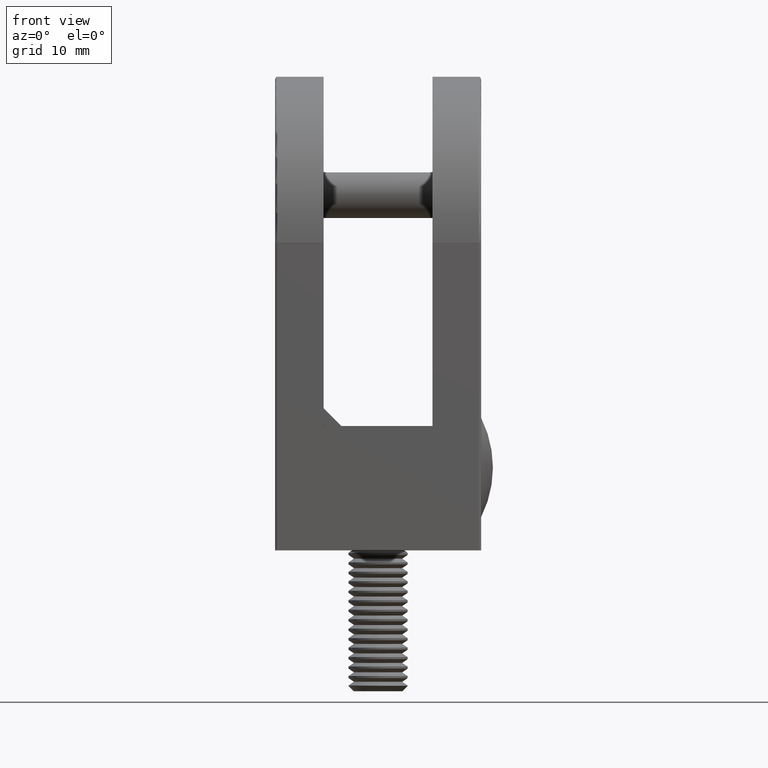
[diagram: clean part render]
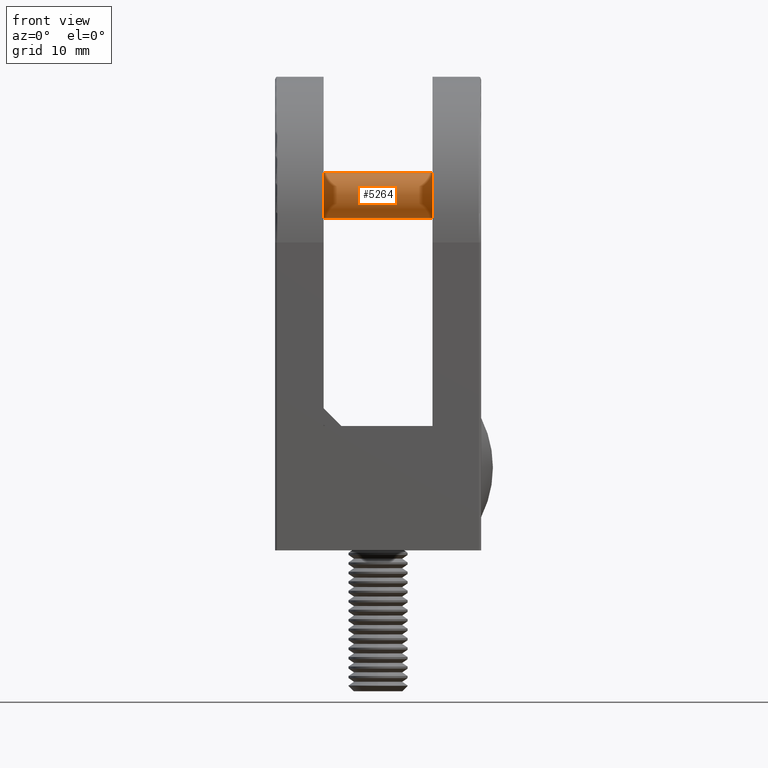
[diagram: same view with one face highlighted and labeled with its STEP entity id]
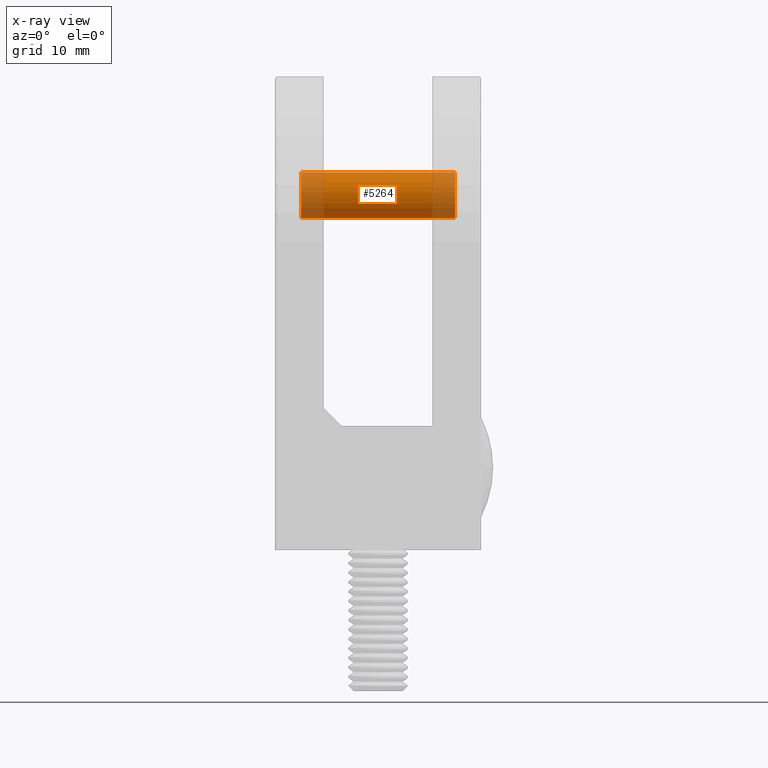
[diagram: x-ray of the same camera — body ghosted, the highlighted face saturated]
A machine part, front view. The second image highlights one B-rep face of the part: STEP entity #5264.
The next image is the same camera in x-ray: the body ghosted, the highlighted face saturated — about 29% of this face is hidden behind the body in this view.
In plain terms, the highlighted cylindrical surface (edge-blend (fillet) strip) has radius 1.925 mm, axis along (1, -0, -0).
Its self-contained STEP definition (entity closure, byte-faithful):
#5264 = ADVANCED_FACE ( 'NONE', ( #8687 ), #35738, .T. ) ;
#5303 = VERTEX_POINT ( 'NONE', #27264 ) ;
#5497 = VECTOR ( 'NONE', #25251, 1000.000000000000000 ) ;
#6347 = CARTESIAN_POINT ( 'NONE',  ( -1.925000000000000000, 0.0000000000000000000, 6.500000000000000000 ) ) ;
#8687 = FACE_OUTER_BOUND ( 'NONE', #25157, .T. ) ;
#9836 = CARTESIAN_POINT ( 'NONE',  ( -1.925000000000000000, 0.0000000000000000000, -6.500000000000000000 ) ) ;
#11685 = CARTESIAN_POINT ( 'NONE',  ( 0.0000000000000000000, 0.0000000000000000000, 6.500000000000000000 ) ) ;
#11728 = VECTOR ( 'NONE', #21962, 1000.000000000000000 ) ;
#17077 = DIRECTION ( 'NONE',  ( 1.000000000000000000, 0.0000000000000000000, 0.0000000000000000000 ) ) ;
#17611 = ORIENTED_EDGE ( 'NONE', *, *, #44338, .F. ) ;
#19128 = DIRECTION ( 'NONE',  ( 0.0000000000000000000, 0.0000000000000000000, 1.000000000000000000 ) ) ;
#19508 = LINE ( 'NONE', #29011, #5497 ) ;
#21780 = EDGE_CURVE ( 'NONE', #37038, #47222, #28876, .T. ) ;
#21962 = DIRECTION ( 'NONE',  ( -0.0000000000000000000, -0.0000000000000000000, -1.000000000000000000 ) ) ;
#22078 = VERTEX_POINT ( 'NONE', #23888 ) ;
#23888 = CARTESIAN_POINT ( 'NONE',  ( 1.925000000000000000, 2.357445088358654300E-016, -6.500000000000000000 ) ) ;
#25157 = EDGE_LOOP ( 'NONE', ( #46933, #17611, #30976, #50433 ) ) ;
#25251 = DIRECTION ( 'NONE',  ( -0.0000000000000000000, -0.0000000000000000000, -1.000000000000000000 ) ) ;
#25681 = CIRCLE ( 'NONE', #30868, 1.925000000000000000 ) ;
#25866 = AXIS2_PLACEMENT_3D ( 'NONE', #11685, #35000, #38954 ) ;
#27264 = CARTESIAN_POINT ( 'NONE',  ( 1.925000000000000000, 2.357445088358654300E-016, 6.500000000000000000 ) ) ;
#28876 = LINE ( 'NONE', #45583, #11728 ) ;
#29011 = CARTESIAN_POINT ( 'NONE',  ( 1.925000000000000000, 2.357445088358654300E-016, 6.500000000000000000 ) ) ;
#30868 = AXIS2_PLACEMENT_3D ( 'NONE', #44601, #40643, #17077 ) ;
#30976 = ORIENTED_EDGE ( 'NONE', *, *, #21780, .T. ) ;
#34264 = CARTESIAN_POINT ( 'NONE',  ( 0.0000000000000000000, 0.0000000000000000000, -6.500000000000000000 ) ) ;
#35000 = DIRECTION ( 'NONE',  ( -0.0000000000000000000, -0.0000000000000000000, -1.000000000000000000 ) ) ;
#35738 = CYLINDRICAL_SURFACE ( 'NONE', #25866, 1.925000000000000000 ) ;
#37038 = VERTEX_POINT ( 'NONE', #6347 ) ;
#38900 = EDGE_CURVE ( 'NONE', #47222, #22078, #42656, .T. ) ;
#38954 = DIRECTION ( 'NONE',  ( -1.000000000000000000, 0.0000000000000000000, 0.0000000000000000000 ) ) ;
#40643 = DIRECTION ( 'NONE',  ( 0.0000000000000000000, 0.0000000000000000000, 1.000000000000000000 ) ) ;
#42656 = CIRCLE ( 'NONE', #45333, 1.925000000000000000 ) ;
#44338 = EDGE_CURVE ( 'NONE', #37038, #5303, #25681, .T. ) ;
#44601 = CARTESIAN_POINT ( 'NONE',  ( 0.0000000000000000000, 0.0000000000000000000, 6.500000000000000000 ) ) ;
#44901 = EDGE_CURVE ( 'NONE', #5303, #22078, #19508, .T. ) ;
#45333 = AXIS2_PLACEMENT_3D ( 'NONE', #34264, #19128, #46674 ) ;
#45583 = CARTESIAN_POINT ( 'NONE',  ( -1.925000000000000000, 0.0000000000000000000, 6.500000000000000000 ) ) ;
#46674 = DIRECTION ( 'NONE',  ( 1.000000000000000000, 0.0000000000000000000, 0.0000000000000000000 ) ) ;
#46933 = ORIENTED_EDGE ( 'NONE', *, *, #44901, .F. ) ;
#47222 = VERTEX_POINT ( 'NONE', #9836 ) ;
#50433 = ORIENTED_EDGE ( 'NONE', *, *, #38900, .T. ) ;